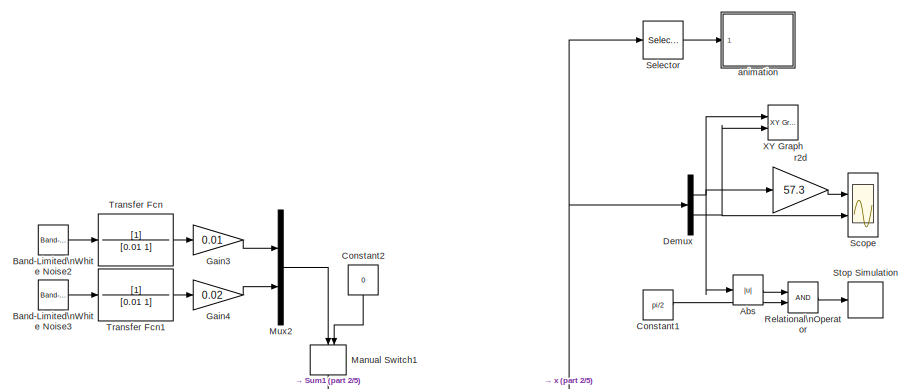
[diagram: root canvas - part 1/5, top center region]
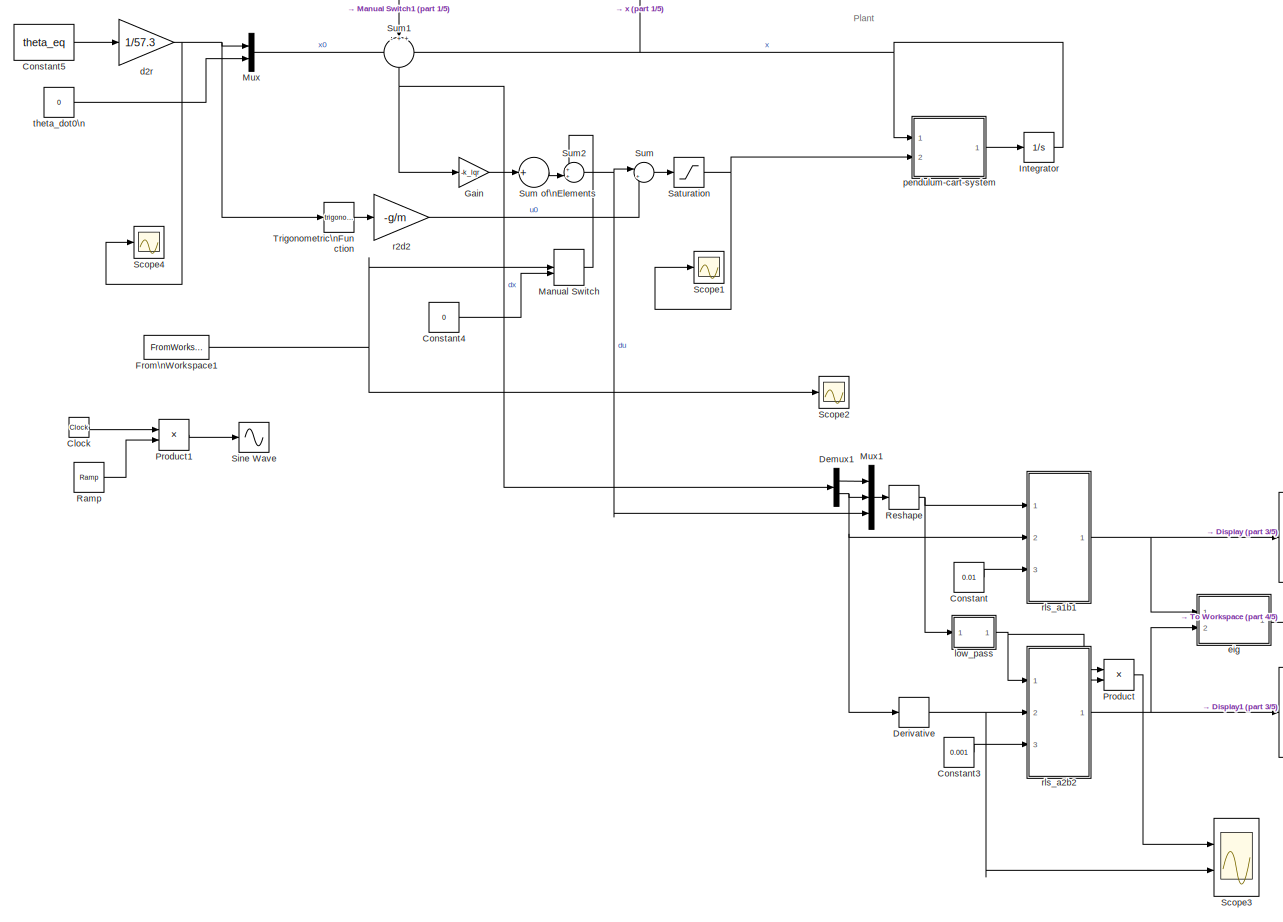
[diagram: root canvas - part 2/5, full width, middle band]
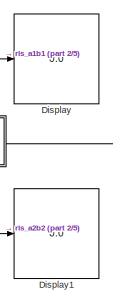
[diagram: root canvas - part 3/5, middle right region]
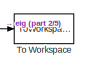
[diagram: root canvas - part 4/5, middle right region]
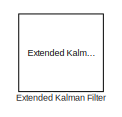
[diagram: root canvas - part 5/5, bottom right region]
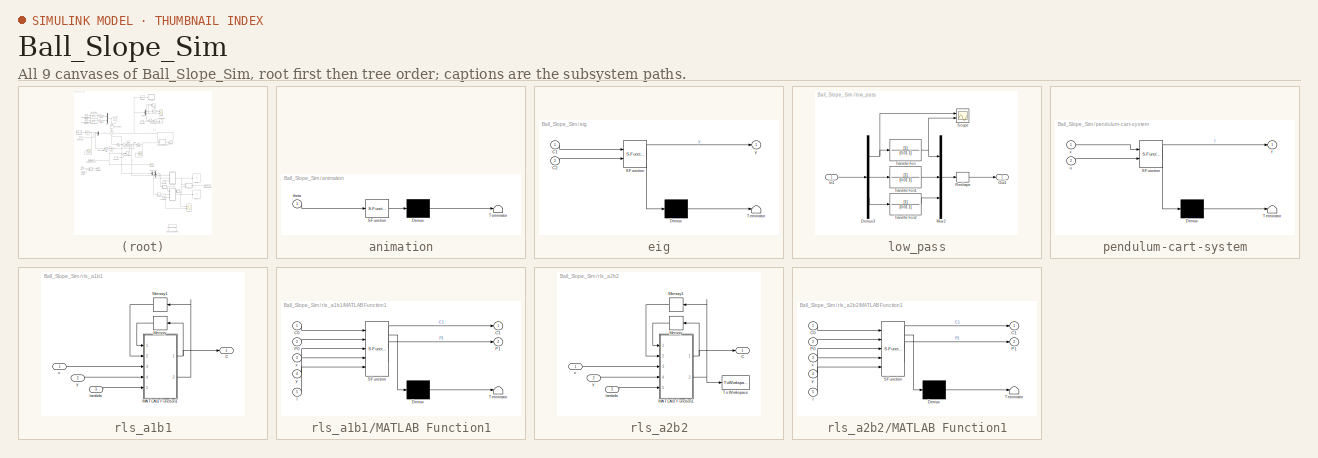
[diagram: thumbnail index - all 9 canvases of the model, root first then tree order]
MODEL Ball_Slope_Sim
KIND model
CONFIG InitFcn = initialize
BLOCK [Abs] Abs
  SID = 41
  SaturateOnIntegerOverflow = off
BLOCK [Reference] Band-Limited\nWhite Noise2  REF=simulink/Sources/Band-Limited\nWhite Noise
  Cov = [0.1]
  Ports = [0, 1]
  SID = 149
  SourceBlock = simulink/Sources/Band-Limited\nWhite Noise
  SourceProductBaseCode = SL
  SourceProductName = Simulink
  SourceType = Band-Limited White Noise.
  Ts = 0.1
  VectorParams1D = on
  seed = [23341]
BLOCK [Reference] Band-Limited\nWhite Noise3  REF=simulink/Sources/Band-Limited\nWhite Noise
  Cov = [0.1]
  Ports = [0, 1]
  SID = 150
  SourceBlock = simulink/Sources/Band-Limited\nWhite Noise
  SourceProductBaseCode = SL
  SourceProductName = Simulink
  SourceType = Band-Limited White Noise.
  Ts = 0.1
  VectorParams1D = on
  seed = [23341]
BLOCK [Clock] Clock
  SID = 166
BLOCK [Constant] Constant
  SID = 73
  Value = 0.01
BLOCK [Constant] Constant1
  SID = 40
  Value = pi/2
BLOCK [Constant] Constant2
  SID = 162
  Value = 0
BLOCK [Constant] Constant3
  SID = 93
  Value = 0.001
BLOCK [Constant] Constant4
  SID = 122
  Value = 0
BLOCK [Constant] Constant5
  SID = 203
  Value = theta_eq
BLOCK [Demux] Demux
  DisplayOption = bar
  Outputs = 2
  Ports = [1, 2]
  SID = 5
BLOCK [Demux] Demux1
  DisplayOption = bar
  Outputs = 2
  Ports = [1, 2]
  SID = 83
BLOCK [Derivative] Derivative
  CoefficientInTFapproximation = 0.01
  SID = 92
BLOCK [Display] Display
  Decimation = 1
  Ports = [1]
  SID = 75
BLOCK [Display] Display1
  Decimation = 1
  Ports = [1]
  SID = 94
BLOCK [Reference] Extended Kalman Filter  REF=sharedTrackingLibrary/Extended Kalman Filter
  DataType = double
  EnableMultirate = off
  HasAdditiveMeasurementNoise1 = Additive
  HasAdditiveMeasurementNoise2 = Additive
  HasAdditiveMeasurementNoise3 = Additive
  HasAdditiveMeasurementNoise4 = Additive
  HasAdditiveMeasurementNoise5 = Additive
  HasAdditiveProcessNoise = Additive
  HasMeasurementEnablePort1 = off
  HasMeasurementEnablePort2 = off
  HasMeasurementEnablePort3 = off
  HasMeasurementEnablePort4 = off
  HasMeasurementEnablePort5 = off
  HasMeasurementFcnExtraArgument1 = 0
  HasMeasurementFcnExtraArgument2 = 0
  HasMeasurementFcnExtraArgument3 = 0
  HasMeasurementFcnExtraArgument4 = 0
  HasMeasurementFcnExtraArgument5 = 0
  HasMeasurementJacobianFcn1 = off
  HasMeasurementJacobianFcn2 = off
  HasMeasurementJacobianFcn3 = off
  HasMeasurementJacobianFcn4 = off
  HasMeasurementJacobianFcn5 = off
  HasStateTransitionFcnExtraArgument = 0
  HasStateTransitionJacobianFcn = off
  HasTimeVaryingMeasurementNoise1 = off
  HasTimeVaryingMeasurementNoise2 = off
  HasTimeVaryingMeasurementNoise3 = off
  HasTimeVaryingMeasurementNoise4 = off
  HasTimeVaryingMeasurementNoise5 = off
  HasTimeVaryingProcessNoise = off
  InitialState = 0
  InitialStateCovariance = 1
  MeasurementFcn1 = myMeasurementFcn1
  MeasurementFcn1SampleTime = 1
  MeasurementFcn2 = myMeasurementFcn2
  MeasurementFcn2SampleTime = 1
  MeasurementFcn3 = myMeasurementFcn
  MeasurementFcn3SampleTime = 1
  MeasurementFcn4 = myMeasurementFcn
  MeasurementFcn4SampleTime = 1
  MeasurementFcn5 = myMeasurementFcn
  MeasurementFcn5SampleTime = 1
  MeasurementNoise1 = 1
  MeasurementNoise2 = 1
  MeasurementNoise3 = 1
  MeasurementNoise4 = 1
  MeasurementNoise5 = 1
  NumberOfMeasurements = 2
  OutputStateCovariance = off
  Ports = [2, 1]
  ProcessNoise = 1
  SID = 222
  SampleTime = 1
  SourceBlock = sharedTrackingLibrary/Extended Kalman Filter
  SourceProductBaseCode = CT
  SourceProductName = Control System Toolbox
  SourceType = Extended Kalman Filter
  StateTransitionFcn = myStateTransitionFcn
  StateTransitionFcnSampleTime = 1
  UseCurrentEstimator = on
BLOCK [FromWorkspace] From\nWorkspace1
  SID = 197
  VariableName = signalchirp
  ZeroCross = on
BLOCK [Gain] Gain
  Gain = -k_lqr
  OutDataTypeStr = Inherit: Inherit via internal rule
  ParamDataTypeStr = Inherit: Inherit via internal rule
  SID = 42
  SaturateOnIntegerOverflow = off
BLOCK [Gain] Gain3
  Gain = 0.01
  OutDataTypeStr = Inherit: Inherit via internal rule
  ParamDataTypeStr = Inherit: Inherit via internal rule
  SID = 151
  SaturateOnIntegerOverflow = off
BLOCK [Gain] Gain4
  Gain = 0.02
  OutDataTypeStr = Inherit: Inherit via internal rule
  ParamDataTypeStr = Inherit: Inherit via internal rule
  SID = 152
  SaturateOnIntegerOverflow = off
BLOCK [Integrator] Integrator
  InitialCondition = x0
  Ports = [1, 1]
  SID = 2
BLOCK [ManualSwitch] Manual Switch
  SID = 80
BLOCK [ManualSwitch] Manual Switch1
  CurrentSetting = 0
  SID = 161
BLOCK [Mux] Mux
  DisplayOption = bar
  Inputs = 2
  Ports = [2, 1]
  SID = 56
BLOCK [Mux] Mux1
  DisplayOption = bar
  Inputs = 3
  Ports = [3, 1]
  SID = 72
BLOCK [Mux] Mux2
  DisplayOption = bar
  Inputs = 2
  Ports = [2, 1]
  SID = 153
BLOCK [Product] Product
  InputSameDT = off
  Multiplication = Matrix(*)
  OutDataTypeStr = Inherit: Inherit via internal rule
  Ports = [2, 1]
  RndMeth = Floor
  SID = 204
  SaturateOnIntegerOverflow = off
BLOCK [Product] Product1
  InputSameDT = off
  OutDataTypeStr = Inherit: Inherit via internal rule
  Ports = [2, 1]
  RndMeth = Floor
  SID = 167
  SaturateOnIntegerOverflow = off
BLOCK [Reference] Ramp  REF=simulink/Sources/Ramp
  Ports = [0, 1]
  SID = 164
  SourceBlock = simulink/Sources/Ramp
  SourceProductBaseCode = SL
  SourceProductName = Simulink
  SourceType = Ramp
  VectorParams1D = on
  X0 = 0
  slope = 0.5
  start = 5
BLOCK [RelationalOperator] Relational\nOperator
  InputSameDT = off
  OutDataTypeStr = boolean
  Ports = [2, 1]
  RndMeth = Simplest
  SID = 39
BLOCK [Reshape] Reshape
  OutputDimensionality = Row vector (2-D)
  Ports = [1, 1]
  SID = 76
BLOCK [Saturate] Saturation
  InputPortMap = u0
  LowerLimit = umin
  Ports = [1, 1]
  SID = 60
  UpperLimit = umax
BLOCK [Scope] Scope
  Floating = off
  NumInputPorts = 2
  Ports = [2]
  SID = 4
  ScopeSpecificationString = Simulink.scopes.TimeScopeBlockCfg('CurrentConfiguration', extmgr.ConfigurationSet(extmgr.Configuration('Core','General UI',true),extmgr.Configuration('Core','Source UI',true),extmgr.Configuration('Sources','WiredSimulink',true),extmgr.Configuration('Visuals','Time Domain',true,'SerializedDisplays',{struct('MinYLimReal','-0.86111','MaxYLimReal','3.285','YLabelReal','','MinYLimMag','0.00000','MaxYLi...<+1959ch>
BLOCK [Scope] Scope1
  Floating = off
  NumInputPorts = 1
  Ports = [1]
  SID = 58
  ScopeSpecificationString = Simulink.scopes.TimeScopeBlockCfg('CurrentConfiguration', extmgr.ConfigurationSet(extmgr.Configuration('Core','General UI',true),extmgr.Configuration('Core','Source UI',true),extmgr.Configuration('Sources','WiredSimulink',true,'DataLoggingVariableName','ScopeData1'),extmgr.Configuration('Visuals','Time Domain',true,'SerializedDisplays',{struct('MinYLimReal','-5.42131','MaxYLimReal','4.62412','YLab...<+1458ch>
BLOCK [Scope] Scope2
  Floating = off
  NumInputPorts = 1
  Ports = [1]
  SID = 130
  ScopeSpecificationString = Simulink.scopes.TimeScopeBlockCfg('CurrentConfiguration', extmgr.ConfigurationSet(extmgr.Configuration('Core','General UI',true),extmgr.Configuration('Core','Source UI',true),extmgr.Configuration('Sources','WiredSimulink',true,'DataLoggingVariableName','ScopeData3'),extmgr.Configuration('Visuals','Time Domain',true,'SerializedDisplays',{struct('MinYLimReal','-1.00000','MaxYLimReal','1.00000','YLab...<+1459ch>
BLOCK [Scope] Scope3
  Floating = off
  NumInputPorts = 2
  Ports = [2]
  SID = 205
  ScopeSpecificationString = Simulink.scopes.TimeScopeBlockCfg('CurrentConfiguration', extmgr.ConfigurationSet(extmgr.Configuration('Core','General UI',true),extmgr.Configuration('Core','Source UI',true),extmgr.Configuration('Sources','WiredSimulink',true,'DataLoggingVariableName','ScopeData2'),extmgr.Configuration('Visuals','Time Domain',true,'SerializedDisplays',{struct('MinYLimReal','-1.2209','MaxYLimReal','1.22026','YLabe...<+1453ch>
BLOCK [Scope] Scope4
  Floating = off
  NumInputPorts = 1
  Ports = [1]
  SID = 199
  ScopeSpecificationString = Simulink.scopes.TimeScopeBlockCfg('CurrentConfiguration', extmgr.ConfigurationSet(extmgr.Configuration('Core','General UI',true),extmgr.Configuration('Core','Source UI',true),extmgr.Configuration('Sources','WiredSimulink',true,'DataLoggingVariableName','ScopeData4'),extmgr.Configuration('Visuals','Time Domain',true,'SerializedDisplays',{struct('MinYLimReal','-1.00000','MaxYLimReal','1.00000','YLab...<+1436ch>
BLOCK [Selector] Selector
  IndexOptions = Index vector (dialog)
  Indices = [1]
  InputPortWidth = 2
  OutputSizes = 1
  Ports = [1, 1]
  SID = 37
BLOCK [Sin] Sine Wave
  Ports = [1, 1]
  SID = 165
  SampleTime = 0
  TimeSource = Use external signal
BLOCK [Stop] Stop Simulation
  SID = 38
BLOCK [Sum] Sum
  IconShape = round
  InputSameDT = off
  Inputs = |++
  OutDataTypeStr = Inherit: Inherit via internal rule
  Ports = [2, 1]
  SID = 44
  SaturateOnIntegerOverflow = off
BLOCK [Sum] Sum of\nElements
  InputSameDT = off
  Inputs = +
  OutDataTypeStr = Inherit: Inherit via internal rule
  Ports = [1, 1]
  SID = 45
  SaturateOnIntegerOverflow = off
BLOCK [Sum] Sum1
  IconShape = round
  InputSameDT = off
  Inputs = -++
  OutDataTypeStr = Inherit: Inherit via internal rule
  Ports = [3, 1]
  SID = 54
  SaturateOnIntegerOverflow = off
BLOCK [Sum] Sum2
  IconShape = round
  InputSameDT = off
  Inputs = ++|
  OutDataTypeStr = Inherit: Inherit via internal rule
  Ports = [2, 1]
  SID = 95
  SaturateOnIntegerOverflow = off
BLOCK [ToWorkspace] To Workspace
  FixptAsFi = on
  MaxDataPoints = inf
  Ports = [1]
  SID = 193
  SampleTime = -1
  Save2DSignal = 3-D array (concatenate along third dimension)
  SaveFormat = Timeseries
  VariableName = eigens
BLOCK [TransferFcn] Transfer Fcn
  Denominator = [0.01 1]
  SID = 154
BLOCK [TransferFcn] Transfer Fcn1
  Denominator = [0.01 1]
  SID = 155
BLOCK [Trigonometry] Trigonometric\nFunction
  Ports = [1, 1]
  SID = 51
BLOCK [Reference] XY Graph  REF=simulink/Sinks/XY Graph
  Ports = [2]
  SID = 48
  SourceBlock = simulink/Sinks/XY Graph
  SourceProductBaseCode = SL
  SourceProductName = Simulink
  SourceType = XY scope.
  st = -1
  xmax = 5
  xmin = -5
  ymax = 5
  ymin = -5
BLOCK [SubSystem] animation
  ErrorFcn = Stateflow.Translate.translate
  PermitHierarchicalResolution = ExplicitOnly
  Ports = [1]
  RequestExecContextInheritance = off
  SFBlockType = MATLAB Function
  SID = 6
  TreatAsAtomicUnit = on
BLOCK [Demux] animation/ Demux 
  Outputs = 1
  Ports = [1, 1]
  SID = 6::27
BLOCK [S-Function] animation/ SFunction 
  EnableBusSupport = on
  FunctionName = sf_sfun
  Parameters = R,r
  PortCounts = [1 1]
  Ports = [1, 1]
  SFcnIsStateOwnerBlock = off
  SFunctionDeploymentMode = off
  SID = 6::26
  Tag = Stateflow S-Function Ball_Slope_Sim 1
BLOCK [Terminator] animation/ Terminator 
  SID = 6::28
BLOCK [Inport] animation/theta
  IconDisplay = Port number
  SID = 6::22
BLOCK [Gain] d2r
  Gain = 1/57.3
  OutDataTypeStr = Inherit: Inherit via internal rule
  ParamDataTypeStr = Inherit: Inherit via internal rule
  SID = 50
  SaturateOnIntegerOverflow = off
BLOCK [SubSystem] eig
  ErrorFcn = Stateflow.Translate.translate
  PermitHierarchicalResolution = ExplicitOnly
  Ports = [2, 1]
  RequestExecContextInheritance = off
  SFBlockType = MATLAB Function
  SID = 181
  TreatAsAtomicUnit = on
BLOCK [Demux] eig/ Demux 
  Outputs = 1
  Ports = [1, 1]
  SID = 181::20
BLOCK [S-Function] eig/ SFunction 
  EnableBusSupport = on
  FunctionName = sf_sfun
  PortCounts = [2 2]
  Ports = [2, 2]
  SFcnIsStateOwnerBlock = off
  SFunctionDeploymentMode = off
  SID = 181::19
  Tag = Stateflow S-Function Ball_Slope_Sim 5
BLOCK [Terminator] eig/ Terminator 
  SID = 181::21
BLOCK [Inport] eig/C1
  IconDisplay = Port number
  SID = 181::1
BLOCK [Inport] eig/C2
  IconDisplay = Port number
  Port = 2
  SID = 181::22
BLOCK [Outport] eig/y
  IconDisplay = Port number
  SID = 181::5
BLOCK [SubSystem] low_pass
  Ports = [1, 1]
  RequestExecContextInheritance = off
  SID = 114
BLOCK [Demux] low_pass/Demux3
  DisplayOption = bar
  Outputs = 3
  Ports = [1, 3]
  SID = 113
BLOCK [Inport] low_pass/In1
  IconDisplay = Port number
  SID = 115
BLOCK [Mux] low_pass/Mux2
  DisplayOption = bar
  Inputs = 3
  Ports = [3, 1]
  SID = 112
BLOCK [Outport] low_pass/Out1
  IconDisplay = Port number
  SID = 116
BLOCK [Reshape] low_pass/Reshape
  OutputDimensionality = Row vector (2-D)
  Ports = [1, 1]
  SID = 117
BLOCK [Scope] low_pass/Scope
  Floating = off
  NumInputPorts = 2
  Ports = [2]
  SID = 119
  ScopeSpecificationString = Simulink.scopes.TimeScopeBlockCfg('CurrentConfiguration', extmgr.ConfigurationSet(extmgr.Configuration('Core','General UI',true),extmgr.Configuration('Core','Source UI',true),extmgr.Configuration('Sources','WiredSimulink',true,'DataLoggingVariableName','ScopeData1'),extmgr.Configuration('Visuals','Time Domain',true,'SerializedDisplays',{struct('MinYLimReal','-0.10281','MaxYLimReal','0.05691','YLab...<+1458ch>
BLOCK [TransferFcn] low_pass/Transfer Fcn
  Denominator = [0.01 1]
  SID = 109
BLOCK [TransferFcn] low_pass/Transfer Fcn1
  Denominator = [0.01 1]
  SID = 110
BLOCK [TransferFcn] low_pass/Transfer Fcn2
  Denominator = [0.01 1]
  SID = 111
BLOCK [SubSystem] pendulum-cart-system
  ErrorFcn = Stateflow.Translate.translate
  PermitHierarchicalResolution = ExplicitOnly
  Ports = [2, 1]
  RequestExecContextInheritance = off
  SFBlockType = MATLAB Function
  SID = 1
  TreatAsAtomicUnit = on
BLOCK [Demux] pendulum-cart-system/ Demux 
  Outputs = 1
  Ports = [1, 1]
  SID = 1::32
BLOCK [S-Function] pendulum-cart-system/ SFunction 
  EnableBusSupport = on
  FunctionName = sf_sfun
  Parameters = R,c,g,m,sign
  PortCounts = [2 2]
  Ports = [2, 2]
  SFcnIsStateOwnerBlock = off
  SFunctionDeploymentMode = off
  SID = 1::31
  Tag = Stateflow S-Function Ball_Slope_Sim 2
BLOCK [Terminator] pendulum-cart-system/ Terminator 
  SID = 1::33
BLOCK [Outport] pendulum-cart-system/f
  IconDisplay = Port number
  SID = 1::5
BLOCK [Inport] pendulum-cart-system/u
  IconDisplay = Port number
  Port = 2
  SID = 1::1
BLOCK [Inport] pendulum-cart-system/x
  IconDisplay = Port number
  SID = 1::22
BLOCK [Gain] r2d
  Gain = 57.3
  OutDataTypeStr = Inherit: Inherit via internal rule
  ParamDataTypeStr = Inherit: Inherit via internal rule
  SID = 57
  SaturateOnIntegerOverflow = off
BLOCK [Gain] r2d2
  Gain = -g/m
  OutDataTypeStr = Inherit: Inherit via internal rule
  ParamDataTypeStr = Inherit: Inherit via internal rule
  SID = 53
  SaturateOnIntegerOverflow = off
BLOCK [SubSystem] rls_a1b1
  Ports = [3, 1]
  RequestExecContextInheritance = off
  SID = 68
BLOCK [Outport] rls_a1b1/C
  IconDisplay = Port number
  SID = 74
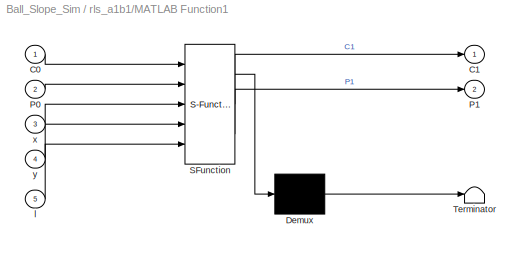
BLOCK [SubSystem] rls_a1b1/MATLAB Function1
  ErrorFcn = Stateflow.Translate.translate
  PermitHierarchicalResolution = ExplicitOnly
  Ports = [5, 2]
  RequestExecContextInheritance = off
  SFBlockType = MATLAB Function
  SID = 65
  SystemSampleTime = 0.1
  TreatAsAtomicUnit = on
BLOCK [Demux] rls_a1b1/MATLAB Function1/ Demux 
  Outputs = 1
  Ports = [1, 1]
  SID = 65::29
BLOCK [S-Function] rls_a1b1/MATLAB Function1/ SFunction 
  EnableBusSupport = on
  FunctionName = sf_sfun
  PortCounts = [5 3]
  Ports = [5, 3]
  SFcnIsStateOwnerBlock = off
  SFunctionDeploymentMode = off
  SID = 65::28
  Tag = Stateflow S-Function Ball_Slope_Sim 4
BLOCK [Terminator] rls_a1b1/MATLAB Function1/ Terminator 
  SID = 65::30
BLOCK [Inport] rls_a1b1/MATLAB Function1/C0
  IconDisplay = Port number
  SID = 65::22
BLOCK [Outport] rls_a1b1/MATLAB Function1/C1
  IconDisplay = Port number
  SID = 65::25
BLOCK [Inport] rls_a1b1/MATLAB Function1/P0
  IconDisplay = Port number
  Port = 2
  SID = 65::23
BLOCK [Outport] rls_a1b1/MATLAB Function1/P1
  IconDisplay = Port number
  Port = 2
  SID = 65::26
BLOCK [Inport] rls_a1b1/MATLAB Function1/l
  IconDisplay = Port number
  Port = 5
  SID = 65::27
BLOCK [Inport] rls_a1b1/MATLAB Function1/x
  IconDisplay = Port number
  Port = 3
  SID = 65::1
BLOCK [Inport] rls_a1b1/MATLAB Function1/y
  IconDisplay = Port number
  Port = 4
  SID = 65::24
BLOCK [Memory] rls_a1b1/Memory
  InitialCondition = C0
  SID = 66
BLOCK [Memory] rls_a1b1/Memory1
  InitialCondition = P0
  SID = 67
BLOCK [Inport] rls_a1b1/lambda
  IconDisplay = Port number
  Port = 3
  SID = 71
BLOCK [Inport] rls_a1b1/x
  IconDisplay = Port number
  SID = 69
BLOCK [Inport] rls_a1b1/y
  IconDisplay = Port number
  Port = 2
  SID = 70
BLOCK [SubSystem] rls_a2b2
  Ports = [3, 1]
  RequestExecContextInheritance = off
  SID = 84
BLOCK [Outport] rls_a2b2/C
  IconDisplay = Port number
  SID = 91
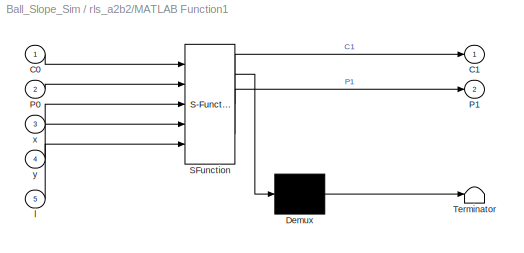
BLOCK [SubSystem] rls_a2b2/MATLAB Function1
  ErrorFcn = Stateflow.Translate.translate
  PermitHierarchicalResolution = ExplicitOnly
  Ports = [5, 2]
  RequestExecContextInheritance = off
  SFBlockType = MATLAB Function
  SID = 88
  SystemSampleTime = 0.1
  TreatAsAtomicUnit = on
BLOCK [Demux] rls_a2b2/MATLAB Function1/ Demux 
  Outputs = 1
  Ports = [1, 1]
  SID = 88::29
BLOCK [S-Function] rls_a2b2/MATLAB Function1/ SFunction 
  EnableBusSupport = on
  FunctionName = sf_sfun
  PortCounts = [5 3]
  Ports = [5, 3]
  SFcnIsStateOwnerBlock = off
  SFunctionDeploymentMode = off
  SID = 88::28
  Tag = Stateflow S-Function Ball_Slope_Sim 3
BLOCK [Terminator] rls_a2b2/MATLAB Function1/ Terminator 
  SID = 88::30
BLOCK [Inport] rls_a2b2/MATLAB Function1/C0
  IconDisplay = Port number
  SID = 88::22
BLOCK [Outport] rls_a2b2/MATLAB Function1/C1
  IconDisplay = Port number
  SID = 88::25
BLOCK [Inport] rls_a2b2/MATLAB Function1/P0
  IconDisplay = Port number
  Port = 2
  SID = 88::23
BLOCK [Outport] rls_a2b2/MATLAB Function1/P1
  IconDisplay = Port number
  Port = 2
  SID = 88::26
BLOCK [Inport] rls_a2b2/MATLAB Function1/l
  IconDisplay = Port number
  Port = 5
  SID = 88::27
BLOCK [Inport] rls_a2b2/MATLAB Function1/x
  IconDisplay = Port number
  Port = 3
  SID = 88::1
BLOCK [Inport] rls_a2b2/MATLAB Function1/y
  IconDisplay = Port number
  Port = 4
  SID = 88::24
BLOCK [Memory] rls_a2b2/Memory
  InitialCondition = C0
  SID = 89
BLOCK [Memory] rls_a2b2/Memory1
  InitialCondition = P0
  SID = 90
BLOCK [ToWorkspace] rls_a2b2/To Workspace
  FixptAsFi = on
  MaxDataPoints = inf
  Ports = [1]
  SID = 210
  SampleTime = -1
  Save2DSignal = 3-D array (concatenate along third dimension)
  SaveFormat = Timeseries
  VariableName = P2
BLOCK [Inport] rls_a2b2/lambda
  IconDisplay = Port number
  Port = 3
  SID = 87
BLOCK [Inport] rls_a2b2/x
  IconDisplay = Port number
  SID = 85
BLOCK [Inport] rls_a2b2/y
  IconDisplay = Port number
  Port = 2
  SID = 86
BLOCK [Constant] theta_dot0\n
  SID = 55
  Value = 0
ANNOTATION (root): Plant
LINE Abs:1 -> Relational\nOperator:1
LINE Band-Limited\nWhite Noise2:1 -> Transfer Fcn:1
LINE Band-Limited\nWhite Noise3:1 -> Transfer Fcn1:1
LINE Clock:1 -> Product1:1
LINE Constant1:1 -> Relational\nOperator:2
LINE Constant2:1 -> Manual Switch1:2
LINE Constant3:1 -> rls_a2b2:3
LINE Constant4:1 -> Manual Switch:2
LINE Constant5:1 -> d2r:1
LINE Constant:1 -> rls_a1b1:3
LINE Demux1:1 -> Mux1:1
NET Demux1:2 -> Derivative:1, Mux1:2, rls_a1b1:2
NET Demux:1 -> Abs:1, XY Graph:1, r2d:1
NET Demux:2 -> Scope:2, XY Graph:2
NET Derivative:1 -> Scope3:2, rls_a2b2:2
NET From\nWorkspace1:1 -> Manual Switch:1, Scope2:1
LINE Gain3:1 -> Mux2:1
LINE Gain4:1 -> Mux2:2
LINE Gain:1 -> Sum of\nElements:1
NET Integrator:1 -> Demux:1, Selector:1, Sum1:3, pendulum-cart-system:1
LINE Manual Switch1:1 -> Sum1:2
LINE Manual Switch:1 -> Sum2:1
LINE Mux1:1 -> Reshape:1
LINE Mux2:1 -> Manual Switch1:1
LINE Mux:1 -> Sum1:1
LINE Product1:1 -> Sine Wave:1
LINE Product:1 -> Scope3:1
LINE Ramp:1 -> Product1:2
LINE Relational\nOperator:1 -> Stop Simulation:1
NET Reshape:1 -> low_pass:1, rls_a1b1:1
NET Saturation:1 -> Scope1:1, pendulum-cart-system:2
LINE Selector:1 -> animation:1
LINE Sum of\nElements:1 -> Sum2:2
NET Sum1:1 -> Demux1:1, Gain:1
NET Sum2:1 -> Mux1:3, Sum:1
LINE Sum:1 -> Saturation:1
LINE Transfer Fcn1:1 -> Gain4:1
LINE Transfer Fcn:1 -> Gain3:1
LINE Trigonometric\nFunction:1 -> r2d2:1
LINE animation/ Demux :1 -> animation/ Terminator :1
LINE animation/ SFunction :1 -> animation/ Demux :1
LINE animation/theta:1 -> animation/ SFunction :1
NET d2r:1 -> Mux:1, Scope4:1, Trigonometric\nFunction:1
LINE eig/ Demux :1 -> eig/ Terminator :1
LINE eig/ SFunction :1 -> eig/ Demux :1
LINE eig/ SFunction :2 -> eig/y:1
LINE eig/C1:1 -> eig/ SFunction :1
LINE eig/C2:1 -> eig/ SFunction :2
LINE eig:1 -> To Workspace:1
NET low_pass/Demux3:1 -> low_pass/Scope:1, low_pass/Transfer Fcn:1
LINE low_pass/Demux3:2 -> low_pass/Transfer Fcn1:1
LINE low_pass/Demux3:3 -> low_pass/Transfer Fcn2:1
LINE low_pass/In1:1 -> low_pass/Demux3:1
LINE low_pass/Mux2:1 -> low_pass/Reshape:1
LINE low_pass/Reshape:1 -> low_pass/Out1:1
LINE low_pass/Transfer Fcn1:1 -> low_pass/Mux2:2
LINE low_pass/Transfer Fcn2:1 -> low_pass/Mux2:3
NET low_pass/Transfer Fcn:1 -> low_pass/Mux2:1, low_pass/Scope:2
NET low_pass:1 -> Product:1, rls_a2b2:1
LINE pendulum-cart-system/ Demux :1 -> pendulum-cart-system/ Terminator :1
LINE pendulum-cart-system/ SFunction :1 -> pendulum-cart-system/ Demux :1
LINE pendulum-cart-system/ SFunction :2 -> pendulum-cart-system/f:1
LINE pendulum-cart-system/u:1 -> pendulum-cart-system/ SFunction :2
LINE pendulum-cart-system/x:1 -> pendulum-cart-system/ SFunction :1
LINE pendulum-cart-system:1 -> Integrator:1
LINE r2d2:1 -> Sum:2
LINE r2d:1 -> Scope:1
LINE rls_a1b1/MATLAB Function1/ Demux :1 -> rls_a1b1/MATLAB Function1/ Terminator :1
LINE rls_a1b1/MATLAB Function1/ SFunction :1 -> rls_a1b1/MATLAB Function1/ Demux :1
LINE rls_a1b1/MATLAB Function1/ SFunction :2 -> rls_a1b1/MATLAB Function1/C1:1
LINE rls_a1b1/MATLAB Function1/ SFunction :3 -> rls_a1b1/MATLAB Function1/P1:1
LINE rls_a1b1/MATLAB Function1/C0:1 -> rls_a1b1/MATLAB Function1/ SFunction :1
LINE rls_a1b1/MATLAB Function1/P0:1 -> rls_a1b1/MATLAB Function1/ SFunction :2
LINE rls_a1b1/MATLAB Function1/l:1 -> rls_a1b1/MATLAB Function1/ SFunction :5
LINE rls_a1b1/MATLAB Function1/x:1 -> rls_a1b1/MATLAB Function1/ SFunction :3
LINE rls_a1b1/MATLAB Function1/y:1 -> rls_a1b1/MATLAB Function1/ SFunction :4
NET rls_a1b1/MATLAB Function1:1 -> rls_a1b1/C:1, rls_a1b1/Memory:1
LINE rls_a1b1/MATLAB Function1:2 -> rls_a1b1/Memory1:1
LINE rls_a1b1/Memory1:1 -> rls_a1b1/MATLAB Function1:2
LINE rls_a1b1/Memory:1 -> rls_a1b1/MATLAB Function1:1
LINE rls_a1b1/lambda:1 -> rls_a1b1/MATLAB Function1:5
LINE rls_a1b1/x:1 -> rls_a1b1/MATLAB Function1:3
LINE rls_a1b1/y:1 -> rls_a1b1/MATLAB Function1:4
NET rls_a1b1:1 -> Display:1, eig:1
LINE rls_a2b2/MATLAB Function1/ Demux :1 -> rls_a2b2/MATLAB Function1/ Terminator :1
LINE rls_a2b2/MATLAB Function1/ SFunction :1 -> rls_a2b2/MATLAB Function1/ Demux :1
LINE rls_a2b2/MATLAB Function1/ SFunction :2 -> rls_a2b2/MATLAB Function1/C1:1
LINE rls_a2b2/MATLAB Function1/ SFunction :3 -> rls_a2b2/MATLAB Function1/P1:1
LINE rls_a2b2/MATLAB Function1/C0:1 -> rls_a2b2/MATLAB Function1/ SFunction :1
LINE rls_a2b2/MATLAB Function1/P0:1 -> rls_a2b2/MATLAB Function1/ SFunction :2
LINE rls_a2b2/MATLAB Function1/l:1 -> rls_a2b2/MATLAB Function1/ SFunction :5
LINE rls_a2b2/MATLAB Function1/x:1 -> rls_a2b2/MATLAB Function1/ SFunction :3
LINE rls_a2b2/MATLAB Function1/y:1 -> rls_a2b2/MATLAB Function1/ SFunction :4
NET rls_a2b2/MATLAB Function1:1 -> rls_a2b2/C:1, rls_a2b2/Memory:1
NET rls_a2b2/MATLAB Function1:2 -> rls_a2b2/Memory1:1, rls_a2b2/To Workspace:1
LINE rls_a2b2/Memory1:1 -> rls_a2b2/MATLAB Function1:2
LINE rls_a2b2/Memory:1 -> rls_a2b2/MATLAB Function1:1
LINE rls_a2b2/lambda:1 -> rls_a2b2/MATLAB Function1:5
LINE rls_a2b2/x:1 -> rls_a2b2/MATLAB Function1:3
LINE rls_a2b2/y:1 -> rls_a2b2/MATLAB Function1:4
NET rls_a2b2:1 -> Display1:1, Product:2, eig:2
LINE theta_dot0\n:1 -> Mux:2
note: NET lines group one-source signal fan-out (src -> all destinations, sorted); 1:1 wires keep LINE
CHART animation states=1 transitions=1
  STATE_LABEL 'eML_blk_kernel()'
CHART pendulum-cart-system states=1 transitions=1
  STATE_LABEL 'eML_blk_kernel()'
CHART rls_a2b2/MATLAB Function1 states=1 transitions=1
  STATE_LABEL 'eML_blk_kernel()'
CHART rls_a1b1/MATLAB Function1 states=1 transitions=1
  STATE_LABEL 'eML_blk_kernel()'
CHART eig states=1 transitions=1
  STATE_LABEL 'eML_blk_kernel()'
